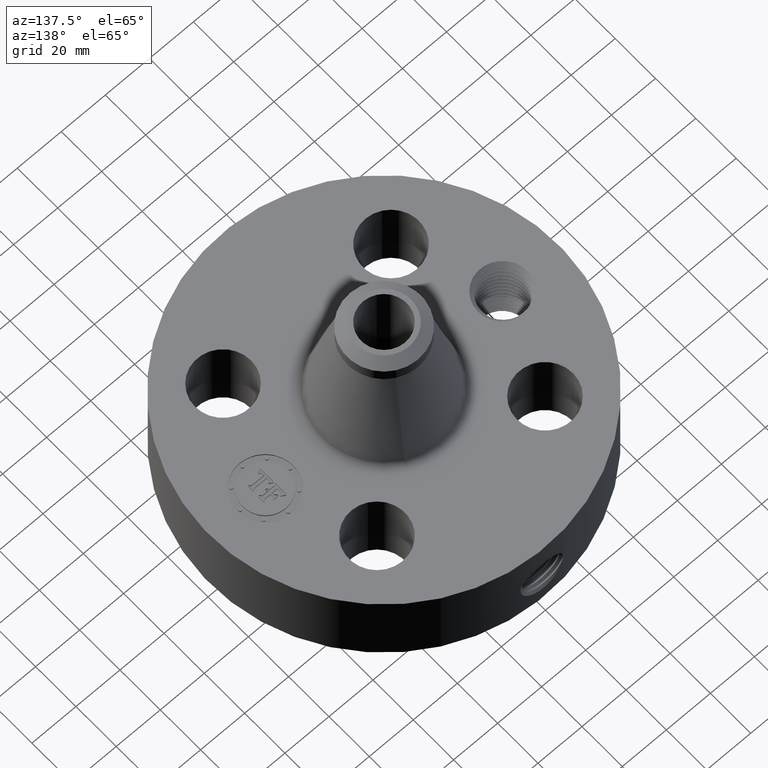
[diagram: clean part render]
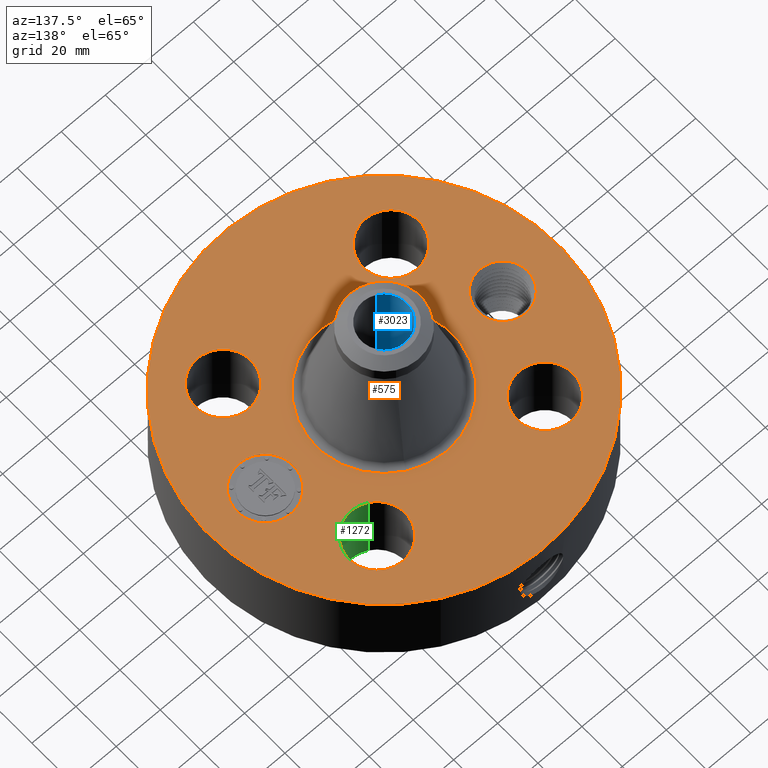
[diagram: same view with three faces highlighted in distinct colors, each labeled with its STEP entity id]
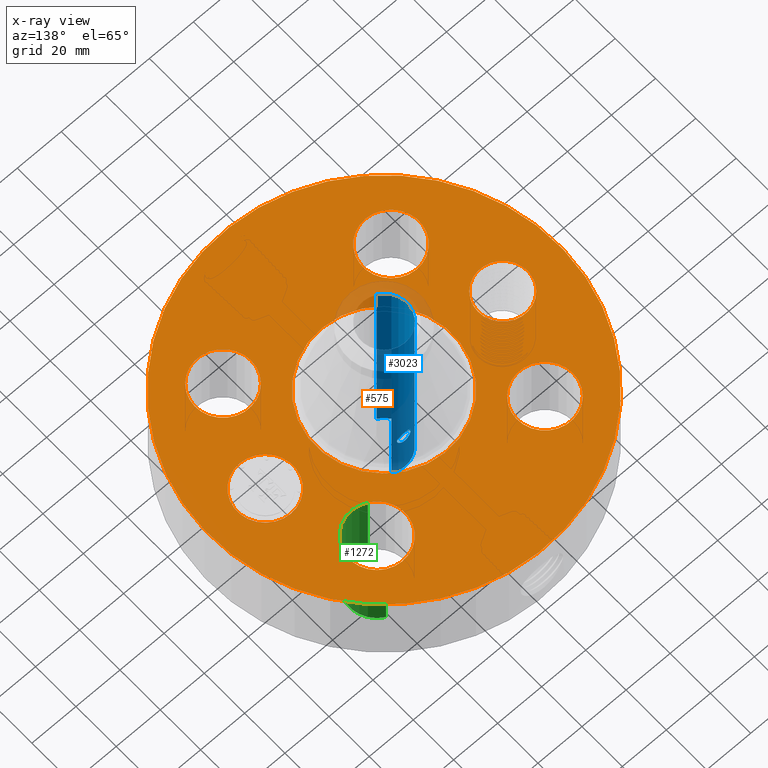
[diagram: x-ray of the same camera — body ghosted, the three highlighted faces saturated]
A machine part, auxiliary view with three faces highlighted in distinct colors.
The next image is the same camera in x-ray (body ghosted, the three faces saturated) — at least one of them is partly hidden behind the body in this view.
Their STEP definitions:

[orange] entity #575 — the highlighted planar face has unit normal (0, 0, -1).
#58=AXIS2_PLACEMENT_3D('Circle Axis2P3D',#56,#57,$) ;
#315=AXIS2_PLACEMENT_3D('Circle Axis2P3D',#313,#314,$) ;
#443=AXIS2_PLACEMENT_3D('Plane Axis2P3D',#440,#441,#442) ;
#451=AXIS2_PLACEMENT_3D('Circle Axis2P3D',#449,#450,$) ;
#460=AXIS2_PLACEMENT_3D('Circle Axis2P3D',#458,#459,$) ;
#469=AXIS2_PLACEMENT_3D('Circle Axis2P3D',#467,#468,$) ;
#478=AXIS2_PLACEMENT_3D('Circle Axis2P3D',#476,#477,$) ;
#487=AXIS2_PLACEMENT_3D('Circle Axis2P3D',#485,#486,$) ;
#496=AXIS2_PLACEMENT_3D('Circle Axis2P3D',#494,#495,$) ;
#505=AXIS2_PLACEMENT_3D('Circle Axis2P3D',#503,#504,$) ;
#514=AXIS2_PLACEMENT_3D('Circle Axis2P3D',#512,#513,$) ;
#523=AXIS2_PLACEMENT_3D('Circle Axis2P3D',#521,#522,$) ;
#532=AXIS2_PLACEMENT_3D('Circle Axis2P3D',#530,#531,$) ;
#541=AXIS2_PLACEMENT_3D('Circle Axis2P3D',#539,#540,$) ;
#550=AXIS2_PLACEMENT_3D('Circle Axis2P3D',#548,#549,$) ;
#559=AXIS2_PLACEMENT_3D('Circle Axis2P3D',#557,#558,$) ;
#568=AXIS2_PLACEMENT_3D('Circle Axis2P3D',#566,#567,$) ;
#53=CARTESIAN_POINT('Vertex',(-1.49820480814,-2.74244550592,1.75000000001)) ;
#56=CARTESIAN_POINT('Axis2P3D Location',(0.,0.,1.75000000001)) ;
#60=CARTESIAN_POINT('Vertex',(1.49820480814,2.74244550592,1.75000000001)) ;
#313=CARTESIAN_POINT('Axis2P3D Location',(0.,0.,1.75000000001)) ;
#440=CARTESIAN_POINT('Axis2P3D Location',(0.,3.12500000001,1.75000000001)) ;
#449=CARTESIAN_POINT('Axis2P3D Location',(-2.12500000001,-5.59482469102E-016,1.75000000001)) ;
#453=CARTESIAN_POINT('Vertex',(-2.51359355842,0.212289628495,1.75000000001)) ;
#455=CARTESIAN_POINT('Vertex',(-1.7364064416,-0.212289628495,1.75000000001)) ;
#458=CARTESIAN_POINT('Axis2P3D Location',(-2.12500000001,-5.59482469102E-016,1.75000000001)) ;
#467=CARTESIAN_POINT('Axis2P3D Location',(1.50260191003,-1.50260191003,1.75000000001)) ;
#471=CARTESIAN_POINT('Vertex',(1.06381062908,-1.26288914072,1.75000000001)) ;
#473=CARTESIAN_POINT('Vertex',(1.94139319097,-1.74231467933,1.75000000001)) ;
#476=CARTESIAN_POINT('Axis2P3D Location',(1.50260191003,-1.50260191003,1.75000000001)) ;
#485=CARTESIAN_POINT('Axis2P3D Location',(0.,0.,1.75000000001)) ;
#489=CARTESIAN_POINT('Vertex',(-0.583597211263,-1.06826752964,1.75000000001)) ;
#491=CARTESIAN_POINT('Vertex',(0.583597211263,1.06826752964,1.75000000001)) ;
#494=CARTESIAN_POINT('Axis2P3D Location',(0.,0.,1.75000000001)) ;
#503=CARTESIAN_POINT('Axis2P3D Location',(-1.50260191003,-1.50260191003,1.75000000001)) ;
#507=CARTESIAN_POINT('Vertex',(-1.74231467933,-1.94139319097,1.75000000001)) ;
#509=CARTESIAN_POINT('Vertex',(-1.26288914072,-1.06381062908,1.75000000001)) ;
#512=CARTESIAN_POINT('Axis2P3D Location',(-1.50260191003,-1.50260191003,1.75000000001)) ;
#521=CARTESIAN_POINT('Axis2P3D Location',(-1.50260191003,1.50260191003,1.75000000001)) ;
#525=CARTESIAN_POINT('Vertex',(-1.94139319097,1.74231467933,1.75000000001)) ;
#527=CARTESIAN_POINT('Vertex',(-1.06381062908,1.26288914072,1.75000000001)) ;
#530=CARTESIAN_POINT('Axis2P3D Location',(-1.50260191003,1.50260191003,1.75000000001)) ;
#539=CARTESIAN_POINT('Axis2P3D Location',(1.50260191003,1.50260191003,1.75000000001)) ;
#543=CARTESIAN_POINT('Vertex',(1.74231467933,1.94139319097,1.75000000001)) ;
#545=CARTESIAN_POINT('Vertex',(1.26288914072,1.06381062908,1.75000000001)) ;
#548=CARTESIAN_POINT('Axis2P3D Location',(1.50260191003,1.50260191003,1.75000000001)) ;
#557=CARTESIAN_POINT('Axis2P3D Location',(2.12500000001,-1.00706844438E-014,1.75000000001)) ;
#561=CARTESIAN_POINT('Vertex',(2.12500000001,0.499999995002,1.75000000001)) ;
#563=CARTESIAN_POINT('Vertex',(2.12500000001,-0.499999995002,1.75000000001)) ;
#566=CARTESIAN_POINT('Axis2P3D Location',(2.12500000001,-1.06301669129E-014,1.75000000001)) ;
#57=DIRECTION('Axis2P3D Direction',(0.,0.,-0.0393700787402)) ;
#314=DIRECTION('Axis2P3D Direction',(0.,0.,-0.0393700787402)) ;
#441=DIRECTION('Axis2P3D Direction',(0.,0.,-0.0393700787402)) ;
#442=DIRECTION('Axis2P3D XDirection',(0.0393700787402,0.,0.)) ;
#450=DIRECTION('Axis2P3D Direction',(0.,0.,-0.0393700787402)) ;
#459=DIRECTION('Axis2P3D Direction',(0.,0.,-0.0393700787402)) ;
#468=DIRECTION('Axis2P3D Direction',(0.,0.,-0.0393700787402)) ;
#477=DIRECTION('Axis2P3D Direction',(0.,0.,-0.0393700787402)) ;
#486=DIRECTION('Axis2P3D Direction',(0.,0.,-0.0393700787402)) ;
#495=DIRECTION('Axis2P3D Direction',(0.,0.,-0.0393700787402)) ;
#504=DIRECTION('Axis2P3D Direction',(0.,0.,-0.0393700787402)) ;
#513=DIRECTION('Axis2P3D Direction',(0.,0.,-0.0393700787402)) ;
#522=DIRECTION('Axis2P3D Direction',(0.,0.,-0.0393700787402)) ;
#531=DIRECTION('Axis2P3D Direction',(0.,0.,-0.0393700787402)) ;
#540=DIRECTION('Axis2P3D Direction',(0.,0.,-0.0393700787402)) ;
#549=DIRECTION('Axis2P3D Direction',(0.,0.,-0.0393700787402)) ;
#558=DIRECTION('Axis2P3D Direction',(0.,0.,-0.0393700787402)) ;
#567=DIRECTION('Axis2P3D Direction',(0.,0.,-0.0393700787402)) ;
#446=ORIENTED_EDGE('',*,*,#317,.F.) ;
#447=ORIENTED_EDGE('',*,*,#62,.F.) ;
#464=ORIENTED_EDGE('',*,*,#457,.T.) ;
#465=ORIENTED_EDGE('',*,*,#462,.T.) ;
#482=ORIENTED_EDGE('',*,*,#475,.T.) ;
#483=ORIENTED_EDGE('',*,*,#480,.T.) ;
#500=ORIENTED_EDGE('',*,*,#493,.T.) ;
#501=ORIENTED_EDGE('',*,*,#498,.T.) ;
#518=ORIENTED_EDGE('',*,*,#511,.T.) ;
#519=ORIENTED_EDGE('',*,*,#516,.T.) ;
#536=ORIENTED_EDGE('',*,*,#529,.T.) ;
#537=ORIENTED_EDGE('',*,*,#534,.T.) ;
#554=ORIENTED_EDGE('',*,*,#547,.T.) ;
#555=ORIENTED_EDGE('',*,*,#552,.T.) ;
#572=ORIENTED_EDGE('',*,*,#565,.T.) ;
#573=ORIENTED_EDGE('',*,*,#570,.T.) ;
#466=FACE_BOUND('',#463,.T.) ;
#484=FACE_BOUND('',#481,.T.) ;
#502=FACE_BOUND('',#499,.T.) ;
#520=FACE_BOUND('',#517,.T.) ;
#538=FACE_BOUND('',#535,.T.) ;
#556=FACE_BOUND('',#553,.T.) ;
#574=FACE_BOUND('',#571,.T.) ;
#575=ADVANCED_FACE('PartBody',(#448,#466,#484,#502,#520,#538,#556,#574),#444,.F.) ;
#59=CIRCLE('generated circle',#58,3.12500000001) ;
#316=CIRCLE('generated circle',#315,3.12500000001) ;
#452=CIRCLE('generated circle',#451,0.442800000002) ;
#461=CIRCLE('generated circle',#460,0.442800000002) ;
#470=CIRCLE('generated circle',#469,0.500000000002) ;
#479=CIRCLE('generated circle',#478,0.500000000002) ;
#488=CIRCLE('generated circle',#487,1.21728436279) ;
#497=CIRCLE('generated circle',#496,1.21728436279) ;
#506=CIRCLE('generated circle',#505,0.500000000002) ;
#515=CIRCLE('generated circle',#514,0.500000000002) ;
#524=CIRCLE('generated circle',#523,0.500000000002) ;
#533=CIRCLE('generated circle',#532,0.500000000002) ;
#542=CIRCLE('generated circle',#541,0.500000000002) ;
#551=CIRCLE('generated circle',#550,0.500000000002) ;
#560=CIRCLE('generated circle',#559,0.499999995002) ;
#569=CIRCLE('generated circle',#568,0.499999995002) ;
#62=EDGE_CURVE('',#54,#61,#59,.T.) ;
#317=EDGE_CURVE('',#61,#54,#316,.T.) ;
#457=EDGE_CURVE('',#454,#456,#452,.T.) ;
#462=EDGE_CURVE('',#456,#454,#461,.T.) ;
#475=EDGE_CURVE('',#472,#474,#470,.T.) ;
#480=EDGE_CURVE('',#474,#472,#479,.T.) ;
#493=EDGE_CURVE('',#490,#492,#488,.T.) ;
#498=EDGE_CURVE('',#492,#490,#497,.T.) ;
#511=EDGE_CURVE('',#508,#510,#506,.T.) ;
#516=EDGE_CURVE('',#510,#508,#515,.T.) ;
#529=EDGE_CURVE('',#526,#528,#524,.T.) ;
#534=EDGE_CURVE('',#528,#526,#533,.T.) ;
#547=EDGE_CURVE('',#544,#546,#542,.T.) ;
#552=EDGE_CURVE('',#546,#544,#551,.T.) ;
#565=EDGE_CURVE('',#562,#564,#560,.T.) ;
#570=EDGE_CURVE('',#564,#562,#569,.T.) ;
#445=EDGE_LOOP('',(#446,#447)) ;
#463=EDGE_LOOP('',(#464,#465)) ;
#481=EDGE_LOOP('',(#482,#483)) ;
#499=EDGE_LOOP('',(#500,#501)) ;
#517=EDGE_LOOP('',(#518,#519)) ;
#535=EDGE_LOOP('',(#536,#537)) ;
#553=EDGE_LOOP('',(#554,#555)) ;
#571=EDGE_LOOP('',(#572,#573)) ;
#448=FACE_OUTER_BOUND('',#445,.T.) ;
#444=PLANE('',#443) ;
#54=VERTEX_POINT('',#53) ;
#61=VERTEX_POINT('',#60) ;
#454=VERTEX_POINT('',#453) ;
#456=VERTEX_POINT('',#455) ;
#472=VERTEX_POINT('',#471) ;
#474=VERTEX_POINT('',#473) ;
#490=VERTEX_POINT('',#489) ;
#492=VERTEX_POINT('',#491) ;
#508=VERTEX_POINT('',#507) ;
#510=VERTEX_POINT('',#509) ;
#526=VERTEX_POINT('',#525) ;
#528=VERTEX_POINT('',#527) ;
#544=VERTEX_POINT('',#543) ;
#546=VERTEX_POINT('',#545) ;
#562=VERTEX_POINT('',#561) ;
#564=VERTEX_POINT('',#563) ;

[blue] entity #3023 — the highlighted cylindrical surface (edge-blend (fillet) strip) has radius 10.3505 mm, axis along (0, 0, -1).
#2206=AXIS2_PLACEMENT_3D('Circle Axis2P3D',#2204,#2205,$) ;
#2894=AXIS2_PLACEMENT_3D('Cylinder Axis2P3D',#2891,#2892,#2893) ;
#2969=AXIS2_PLACEMENT_3D('Circle Axis2P3D',#2967,#2968,$) ;
#2199=CARTESIAN_POINT('Vertex',(0.195365906982,0.357614893972,-2.79741234551E-015)) ;
#2201=CARTESIAN_POINT('Vertex',(-0.195365906982,-0.357614893972,-2.79741234551E-015)) ;
#2204=CARTESIAN_POINT('Axis2P3D Location',(0.,0.,0.)) ;
#2891=CARTESIAN_POINT('Axis2P3D Location',(0.,0.,1.93500000001)) ;
#2900=CARTESIAN_POINT('Vertex',(0.195365906982,0.357614893972,3.87000000002)) ;
#2902=CARTESIAN_POINT('Vertex',(-0.195365906982,-0.357614893972,3.87000000002)) ;
#2905=CARTESIAN_POINT('Line Origine',(0.195365906982,0.357614893972,1.93500000001)) ;
#2910=CARTESIAN_POINT('Line Origine',(-0.195365906982,-0.357614893972,1.93500000001)) ;
#2967=CARTESIAN_POINT('Axis2P3D Location',(0.,0.,3.87000000002)) ;
#2979=CARTESIAN_POINT('Control Point',(0.109697820237,0.392457180131,0.99992819233)) ;
#2980=CARTESIAN_POINT('Control Point',(0.101953976763,0.39462170353,1.01410320273)) ;
#2981=CARTESIAN_POINT('Control Point',(0.0919479484585,0.39721262097,1.02697723205)) ;
#2982=CARTESIAN_POINT('Control Point',(0.0799481605109,0.399918022983,1.03812836308)) ;
#2983=CARTESIAN_POINT('Control Point',(0.0548198366672,0.404387461963,1.05483001477)) ;
#2984=CARTESIAN_POINT('Control Point',(0.0258076265617,0.407022191911,1.0634782876)) ;
#2985=CARTESIAN_POINT('Control Point',(0.0119935925083,0.407685014364,1.06558378783)) ;
#2986=CARTESIAN_POINT('Control Point',(-0.0158344129974,0.407765534898,1.065902464)) ;
#2987=CARTESIAN_POINT('Control Point',(-0.0426295543653,0.40559272377,1.0587142302)) ;
#2988=CARTESIAN_POINT('Control Point',(-0.0553702066475,0.404000347046,1.05331665536)) ;
#2989=CARTESIAN_POINT('Control Point',(-0.0792384252737,0.400099563599,1.0391058073)) ;
#2990=CARTESIAN_POINT('Control Point',(-0.0983368619962,0.39562600334,1.01903768559)) ;
#2991=CARTESIAN_POINT('Control Point',(-0.106537773893,0.393424098214,1.00759549642)) ;
#2992=CARTESIAN_POINT('Control Point',(-0.122850945988,0.388692948769,0.9763879038)) ;
#2993=CARTESIAN_POINT('Control Point',(-0.127730382943,0.386930676141,0.94078757279)) ;
#2994=CARTESIAN_POINT('Control Point',(-0.125967876184,0.387563709435,0.918990823899)) ;
#2995=CARTESIAN_POINT('Control Point',(-0.119731966807,0.389652481778,0.898439189773)) ;
#2996=CARTESIAN_POINT('Control Point',(-0.109697820237,0.392457180131,0.880071807678)) ;
#2997=CARTESIAN_POINT('Vertex',(0.109697820237,0.392457180131,0.99992819233)) ;
#2999=CARTESIAN_POINT('Vertex',(-0.109697820237,0.392457180131,0.880071807678)) ;
#3003=CARTESIAN_POINT('Control Point',(0.109697820237,0.392457180131,0.99992819233)) ;
#3004=CARTESIAN_POINT('Control Point',(0.118266754085,0.390062031278,0.984242864132)) ;
#3005=CARTESIAN_POINT('Control Point',(0.124065719746,0.388188991017,0.966964610497)) ;
#3006=CARTESIAN_POINT('Control Point',(0.126689405487,0.387283128762,0.948682667537)) ;
#3007=CARTESIAN_POINT('Control Point',(0.12474102782,0.3880314922,0.902314293803)) ;
#3008=CARTESIAN_POINT('Control Point',(0.102657670284,0.394751428845,0.860853607843)) ;
#3009=CARTESIAN_POINT('Control Point',(0.0828982999672,0.400072207679,0.840356297498)) ;
#3010=CARTESIAN_POINT('Control Point',(0.0380065083912,0.407590324508,0.814251838586)) ;
#3011=CARTESIAN_POINT('Control Point',(-0.0138147765056,0.408314090429,0.812517713243)) ;
#3012=CARTESIAN_POINT('Control Point',(-0.0370936826908,0.40670934677,0.817325262088)) ;
#3013=CARTESIAN_POINT('Control Point',(-0.0679061167419,0.402368297987,0.831574660796)) ;
#3014=CARTESIAN_POINT('Control Point',(-0.0919650315379,0.397093509968,0.854384154917)) ;
#3015=CARTESIAN_POINT('Control Point',(-0.0987668866771,0.395426872177,0.862326922595)) ;
#3016=CARTESIAN_POINT('Control Point',(-0.104702936001,0.393853327127,0.870928733412)) ;
#3017=CARTESIAN_POINT('Control Point',(-0.109697820237,0.392457180131,0.880071807678)) ;
#2205=DIRECTION('Axis2P3D Direction',(0.,0.,-0.0393700787402)) ;
#2892=DIRECTION('Axis2P3D Direction',(0.,0.,-0.0393700787402)) ;
#2893=DIRECTION('Axis2P3D XDirection',(-0.0188750212049,-0.0345504945626,0.)) ;
#2906=DIRECTION('Vector Direction',(0.,0.,-0.0393700787402)) ;
#2911=DIRECTION('Vector Direction',(0.,0.,-0.0393700787402)) ;
#2968=DIRECTION('Axis2P3D Direction',(0.,0.,-0.0393700787402)) ;
#2907=VECTOR('Line Direction',#2906,0.0393700787402) ;
#2912=VECTOR('Line Direction',#2911,0.0393700787402) ;
#2973=ORIENTED_EDGE('',*,*,#2971,.F.) ;
#2974=ORIENTED_EDGE('',*,*,#2914,.T.) ;
#2975=ORIENTED_EDGE('',*,*,#2208,.T.) ;
#2976=ORIENTED_EDGE('',*,*,#2909,.F.) ;
#3020=ORIENTED_EDGE('',*,*,#3001,.F.) ;
#3021=ORIENTED_EDGE('',*,*,#3018,.T.) ;
#3022=FACE_BOUND('',#3019,.T.) ;
#3023=ADVANCED_FACE('PartBody',(#2977,#3022),#2895,.F.) ;
#2978=B_SPLINE_CURVE_WITH_KNOTS('',5,(#2979,#2980,#2981,#2982,#2983,#2984,#2985,#2986,#2987,#2988,#2989,#2990,#2991,#2992,#2993,#2994,#2995,#2996),.UNSPECIFIED.,.F.,.U.,(6,3,3,3,3,6),(0.,2.92697499838,5.40586952988,7.87448195993,10.3988465603,14.1914976181),.UNSPECIFIED.) ;
#3002=B_SPLINE_CURVE_WITH_KNOTS('',5,(#3003,#3004,#3005,#3006,#3007,#3008,#3009,#3010,#3011,#3012,#3013,#3014,#3015,#3016,#3017),.UNSPECIFIED.,.F.,.U.,(6,3,3,3,6),(0.,3.23883808119,8.19461678355,12.3041534161,14.1920920514),.UNSPECIFIED.) ;
#2207=CIRCLE('generated circle',#2206,0.407500000002) ;
#2970=CIRCLE('generated circle',#2969,0.407500000002) ;
#2895=CYLINDRICAL_SURFACE('generated cylinder',#2894,0.407500000002) ;
#2208=EDGE_CURVE('',#2202,#2200,#2207,.T.) ;
#2909=EDGE_CURVE('',#2901,#2200,#2908,.T.) ;
#2914=EDGE_CURVE('',#2903,#2202,#2913,.T.) ;
#2971=EDGE_CURVE('',#2903,#2901,#2970,.T.) ;
#3001=EDGE_CURVE('',#2998,#3000,#2978,.T.) ;
#3018=EDGE_CURVE('',#2998,#3000,#3002,.T.) ;
#2972=EDGE_LOOP('',(#2973,#2974,#2975,#2976)) ;
#3019=EDGE_LOOP('',(#3020,#3021)) ;
#2977=FACE_OUTER_BOUND('',#2972,.T.) ;
#2908=LINE('Line',#2905,#2907) ;
#2913=LINE('Line',#2910,#2912) ;
#2200=VERTEX_POINT('',#2199) ;
#2202=VERTEX_POINT('',#2201) ;
#2901=VERTEX_POINT('',#2900) ;
#2903=VERTEX_POINT('',#2902) ;
#2998=VERTEX_POINT('',#2997) ;
#3000=VERTEX_POINT('',#2999) ;

[green] entity #1272 — the highlighted cylindrical surface (partial cylindrical patch) has radius 12.7 mm, axis along (0, 0, -1).
#305=AXIS2_PLACEMENT_3D('Circle Axis2P3D',#303,#304,$) ;
#541=AXIS2_PLACEMENT_3D('Circle Axis2P3D',#539,#540,$) ;
#1247=AXIS2_PLACEMENT_3D('Cylinder Axis2P3D',#1244,#1245,#1246) ;
#298=CARTESIAN_POINT('Vertex',(1.26288914072,1.06381062908,0.250000000001)) ;
#300=CARTESIAN_POINT('Vertex',(1.74231467933,1.94139319097,0.250000000001)) ;
#303=CARTESIAN_POINT('Axis2P3D Location',(1.50260191003,1.50260191003,0.250000000001)) ;
#539=CARTESIAN_POINT('Axis2P3D Location',(1.50260191003,1.50260191003,1.75000000001)) ;
#543=CARTESIAN_POINT('Vertex',(1.74231467933,1.94139319097,1.75000000001)) ;
#545=CARTESIAN_POINT('Vertex',(1.26288914072,1.06381062908,1.75000000001)) ;
#1244=CARTESIAN_POINT('Axis2P3D Location',(1.50260191003,1.50260191003,1.74606299213)) ;
#1249=CARTESIAN_POINT('Line Origine',(1.26288914072,1.06381062908,1.)) ;
#1254=CARTESIAN_POINT('Line Origine',(1.74231467933,1.94139319097,1.)) ;
#304=DIRECTION('Axis2P3D Direction',(0.,0.,-0.0393700787402)) ;
#540=DIRECTION('Axis2P3D Direction',(0.,0.,-0.0393700787402)) ;
#1245=DIRECTION('Axis2P3D Direction',(0.,0.,-0.0393700787402)) ;
#1246=DIRECTION('Axis2P3D XDirection',(0.0188750212049,0.0345504945626,0.)) ;
#1250=DIRECTION('Vector Direction',(0.,0.,-0.0393700787402)) ;
#1255=DIRECTION('Vector Direction',(0.,0.,-0.0393700787402)) ;
#1251=VECTOR('Line Direction',#1250,0.0393700787402) ;
#1256=VECTOR('Line Direction',#1255,0.0393700787402) ;
#1267=ORIENTED_EDGE('',*,*,#1258,.F.) ;
#1268=ORIENTED_EDGE('',*,*,#307,.T.) ;
#1269=ORIENTED_EDGE('',*,*,#1253,.T.) ;
#1270=ORIENTED_EDGE('',*,*,#547,.F.) ;
#1272=ADVANCED_FACE('PartBody',(#1271),#1248,.F.) ;
#306=CIRCLE('generated circle',#305,0.500000000002) ;
#542=CIRCLE('generated circle',#541,0.500000000002) ;
#1248=CYLINDRICAL_SURFACE('generated cylinder',#1247,0.500000000002) ;
#307=EDGE_CURVE('',#301,#299,#306,.T.) ;
#547=EDGE_CURVE('',#544,#546,#542,.T.) ;
#1253=EDGE_CURVE('',#299,#546,#1252,.F.) ;
#1258=EDGE_CURVE('',#301,#544,#1257,.F.) ;
#1266=EDGE_LOOP('',(#1267,#1268,#1269,#1270)) ;
#1271=FACE_OUTER_BOUND('',#1266,.T.) ;
#1252=LINE('Line',#1249,#1251) ;
#1257=LINE('Line',#1254,#1256) ;
#299=VERTEX_POINT('',#298) ;
#301=VERTEX_POINT('',#300) ;
#544=VERTEX_POINT('',#543) ;
#546=VERTEX_POINT('',#545) ;